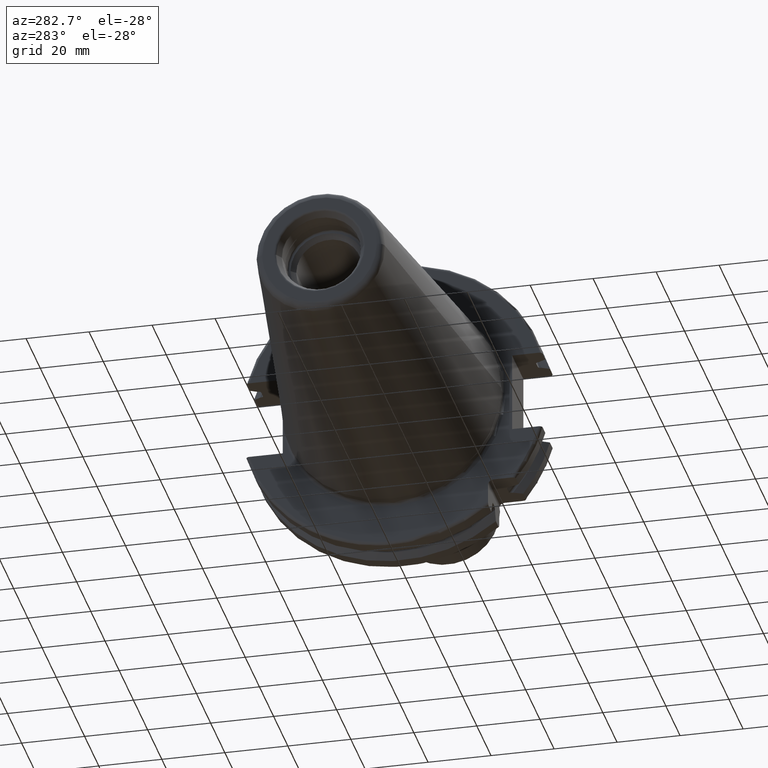
[diagram: clean part render]
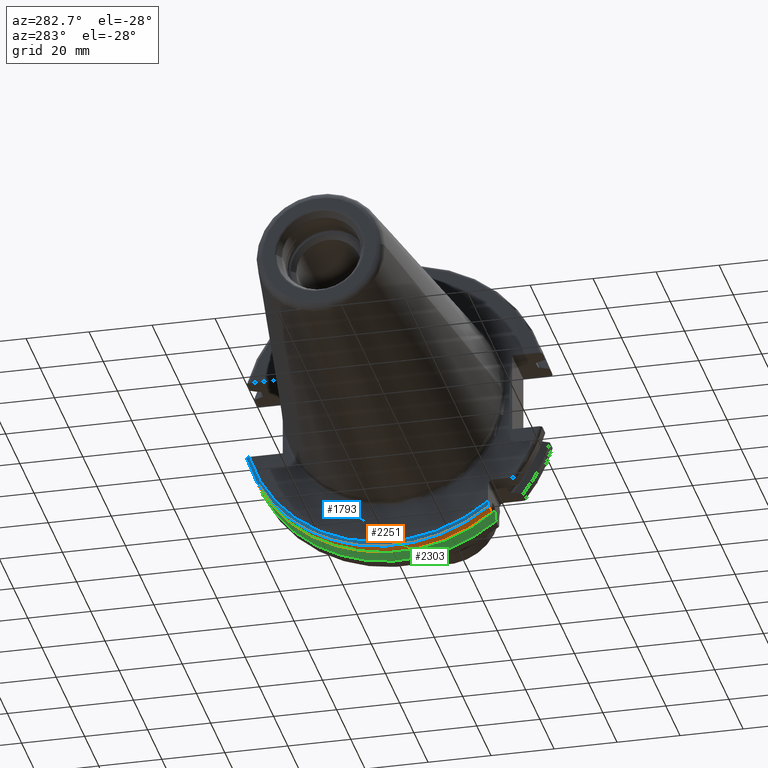
[diagram: same view with three faces highlighted in distinct colors, each labeled with its STEP entity id]
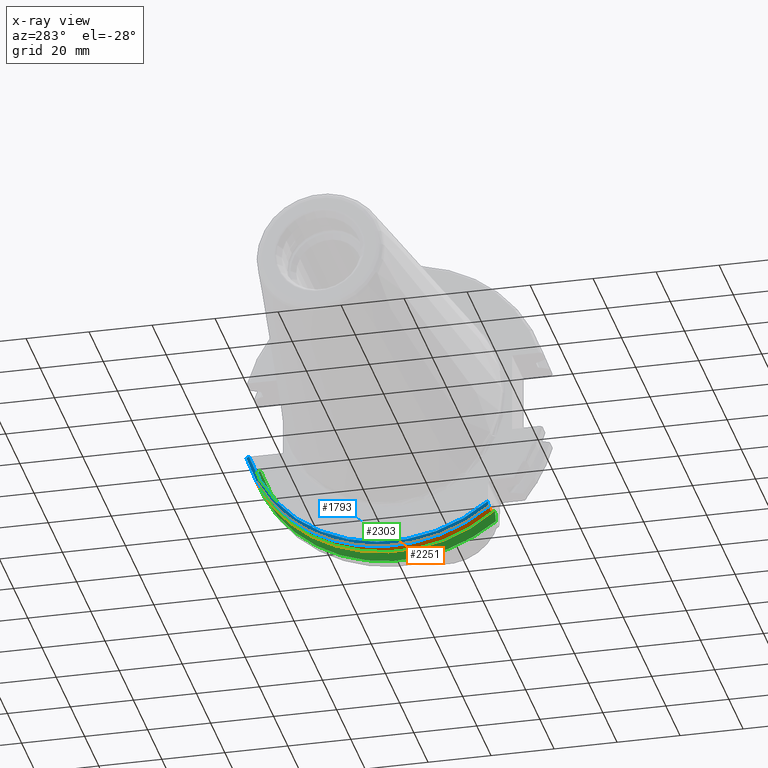
[diagram: x-ray of the same camera — body ghosted, the three highlighted faces saturated]
A machine part, auxiliary view with three faces highlighted in distinct colors.
The next image is the same camera in x-ray (body ghosted, the three faces saturated) — at least one of them is partly hidden behind the body in this view.
Their STEP definitions:

[orange] entity #2251 — the highlighted cylindrical surface (partial cylindrical patch) has radius 48.7375 mm, axis along (1, 0, 0).
#258=CARTESIAN_POINT('',(4.2E0,0.E0,0.E0));
#259=DIRECTION('',(-1.E0,0.E0,0.E0));
#260=DIRECTION('',(0.E0,9.643354064066E-1,-2.646832521159E-1));
#261=AXIS2_PLACEMENT_3D('',#258,#259,#260);
#700=CARTESIAN_POINT('',(7.934621614173E0,4.699929686974E1,-1.29E1));
#707=CARTESIAN_POINT('',(7.934621614173E0,-2.985E1,-3.852689198793E1));
#723=DIRECTION('',(1.E0,0.E0,0.E0));
#724=VECTOR('',#723,3.734621614173E0);
#725=CARTESIAN_POINT('',(4.2E0,4.699929686974E1,-1.29E1));
#726=LINE('',#725,#724);
#727=DIRECTION('',(1.E0,0.E0,0.E0));
#728=VECTOR('',#727,3.734621614173E0);
#729=CARTESIAN_POINT('',(4.2E0,-2.985E1,-3.852689198793E1));
#730=LINE('',#729,#728);
#731=CARTESIAN_POINT('',(7.934621614173E0,0.E0,0.E0));
#732=DIRECTION('',(1.E0,0.E0,0.E0));
#733=DIRECTION('',(0.E0,-6.124647345473E-1,-7.904979120376E-1));
#734=AXIS2_PLACEMENT_3D('',#731,#732,#733);
#1326=VERTEX_POINT('',#700);
#1372=CARTESIAN_POINT('',(4.2E0,4.699929686974E1,-1.29E1));
#1373=VERTEX_POINT('',#1372);
#1401=CARTESIAN_POINT('',(4.2E0,-2.985E1,-3.852689198793E1));
#1402=VERTEX_POINT('',#1401);
#1425=VERTEX_POINT('',#707);
#2240=CARTESIAN_POINT('',(-1.076325E2,0.E0,0.E0));
#2241=DIRECTION('',(1.E0,0.E0,0.E0));
#2242=DIRECTION('',(0.E0,-1.E0,0.E0));
#2243=AXIS2_PLACEMENT_3D('',#2240,#2241,#2242);
#2244=CYLINDRICAL_SURFACE('',#2243,4.87375E1);
#2245=ORIENTED_EDGE('',*,*,#1833,.F.);
#2246=ORIENTED_EDGE('',*,*,#1789,.T.);
#2247=ORIENTED_EDGE('',*,*,#1691,.T.);
#2248=ORIENTED_EDGE('',*,*,#2220,.T.);
#2249=EDGE_LOOP('',(#2245,#2246,#2247,#2248));
#2250=FACE_OUTER_BOUND('',#2249,.F.);
#2251=ADVANCED_FACE('',(#2250),#2244,.T.);
#262=CIRCLE('',#261,4.87375E1);
#735=CIRCLE('',#734,4.87375E1);
#1691=EDGE_CURVE('',#1402,#1425,#730,.T.);
#1789=EDGE_CURVE('',#1373,#1402,#262,.T.);
#1833=EDGE_CURVE('',#1373,#1326,#726,.T.);
#2220=EDGE_CURVE('',#1425,#1326,#735,.T.);

[blue] entity #1793 — the highlighted toroidal blend (fillet) surface has major radius 47.7375 mm and minor (blend) radius 1 mm.
#190=CARTESIAN_POINT('',(3.2E0,0.E0,0.E0));
#191=DIRECTION('',(-1.E0,0.E0,0.E0));
#192=DIRECTION('',(0.E0,9.627964123359E-1,-2.702278083268E-1));
#193=AXIS2_PLACEMENT_3D('',#190,#191,#192);
#237=CARTESIAN_POINT('',(3.2E0,4.596149373389E1,-1.29E1));
#238=CARTESIAN_POINT('',(3.2E0,4.604026443227E1,-1.29E1));
#239=CARTESIAN_POINT('',(3.216813255287E0,4.619328239852E1,-1.29E1));
#240=CARTESIAN_POINT('',(3.290538328370E0,4.641376542139E1,-1.29E1));
#241=CARTESIAN_POINT('',(3.409705660893E0,4.661163928454E1,-1.29E1));
#242=CARTESIAN_POINT('',(3.568375595419E0,4.677744698912E1,-1.29E1));
#243=CARTESIAN_POINT('',(3.759602935675E0,4.690321007119E1,-1.29E1));
#244=CARTESIAN_POINT('',(3.974378910530E0,4.698149887214E1,-1.29E1));
#245=CARTESIAN_POINT('',(4.123284460641E0,4.699929686974E1,-1.29E1));
#246=CARTESIAN_POINT('',(4.2E0,4.699929686974E1,-1.29E1));
#248=CARTESIAN_POINT('',(4.2E0,-2.985E1,-3.852689198793E1));
#249=CARTESIAN_POINT('',(4.121351701574E0,-2.985E1,-3.852689198793E1));
#250=CARTESIAN_POINT('',(3.966904735014E0,-2.985E1,-3.850408165447E1));
#251=CARTESIAN_POINT('',(3.738653969764E0,-2.985E1,-3.839864952437E1));
#252=CARTESIAN_POINT('',(3.529185168070E0,-2.985E1,-3.821837887996E1));
#253=CARTESIAN_POINT('',(3.352580918325E0,-2.985E1,-3.796237987635E1));
#254=CARTESIAN_POINT('',(3.229812788304E0,-2.985E1,-3.762998844337E1));
#255=CARTESIAN_POINT('',(3.2E0,-2.985E1,-3.738468079689E1));
#256=CARTESIAN_POINT('',(3.2E0,-2.985E1,-3.725381062724E1));
#258=CARTESIAN_POINT('',(4.2E0,0.E0,0.E0));
#259=DIRECTION('',(-1.E0,0.E0,0.E0));
#260=DIRECTION('',(0.E0,9.643354064066E-1,-2.646832521159E-1));
#261=AXIS2_PLACEMENT_3D('',#258,#259,#260);
#1362=CARTESIAN_POINT('',(3.2E0,4.596149373389E1,-1.29E1));
#1363=VERTEX_POINT('',#1362);
#1372=CARTESIAN_POINT('',(4.2E0,4.699929686974E1,-1.29E1));
#1373=VERTEX_POINT('',#1372);
#1401=CARTESIAN_POINT('',(4.2E0,-2.985E1,-3.852689198793E1));
#1402=VERTEX_POINT('',#1401);
#1403=CARTESIAN_POINT('',(3.2E0,-2.985E1,-3.725381062724E1));
#1404=VERTEX_POINT('',#1403);
#1780=CARTESIAN_POINT('',(4.2E0,0.E0,0.E0));
#1781=DIRECTION('',(1.E0,0.E0,0.E0));
#1782=DIRECTION('',(0.E0,-1.E0,0.E0));
#1783=AXIS2_PLACEMENT_3D('',#1780,#1781,#1782);
#1784=TOROIDAL_SURFACE('',#1783,4.77375E1,1.E0);
#1786=ORIENTED_EDGE('',*,*,#1785,.F.);
#1787=ORIENTED_EDGE('',*,*,#1723,.T.);
#1788=ORIENTED_EDGE('',*,*,#1693,.F.);
#1790=ORIENTED_EDGE('',*,*,#1789,.F.);
#1791=EDGE_LOOP('',(#1786,#1787,#1788,#1790));
#1792=FACE_OUTER_BOUND('',#1791,.F.);
#1793=ADVANCED_FACE('',(#1792),#1784,.T.);
#194=CIRCLE('',#193,4.77375E1);
#247=B_SPLINE_CURVE_WITH_KNOTS('',3,(#237,#238,#239,#240,#241,#242,#243,#244,
#245,#246),.UNSPECIFIED.,.F.,.F.,(4,1,1,1,1,1,1,4),(0.E0,1.428571428571E-1,
2.857142857143E-1,4.285714285714E-1,5.714285714286E-1,7.142857142857E-1,
8.571428571429E-1,1.E0),.UNSPECIFIED.);
#257=B_SPLINE_CURVE_WITH_KNOTS('',3,(#248,#249,#250,#251,#252,#253,#254,#255,
#256),.UNSPECIFIED.,.F.,.F.,(4,1,1,1,1,1,4),(0.E0,1.666666666667E-1,
3.333333333333E-1,5.E-1,6.666666666667E-1,8.333333333333E-1,1.E0),
.UNSPECIFIED.);
#262=CIRCLE('',#261,4.87375E1);
#1693=EDGE_CURVE('',#1402,#1404,#257,.T.);
#1723=EDGE_CURVE('',#1363,#1404,#194,.T.);
#1785=EDGE_CURVE('',#1363,#1373,#247,.T.);
#1789=EDGE_CURVE('',#1373,#1402,#262,.T.);

[green] entity #2303 — the highlighted conical surface has half-angle 60 deg.
#740=CARTESIAN_POINT('',(1.441537838583E1,0.E0,0.E0));
#741=DIRECTION('',(1.E0,0.E0,0.E0));
#742=DIRECTION('',(0.E0,-6.124647345473E-1,-7.904979120376E-1));
#743=AXIS2_PLACEMENT_3D('',#740,#741,#742);
#785=CARTESIAN_POINT('',(1.30875E1,4.460981716077E1,-1.29E1));
#786=CARTESIAN_POINT('',(1.323171622645E1,4.486984125009E1,-1.29E1));
#787=CARTESIAN_POINT('',(1.352236645045E1,4.539353719098E1,-1.29E1));
#788=CARTESIAN_POINT('',(1.396495664446E1,4.618996220278E1,-1.29E1));
#789=CARTESIAN_POINT('',(1.426449561388E1,4.672829507383E1,-1.29E1));
#790=CARTESIAN_POINT('',(1.441537838583E1,4.699929686974E1,-1.29E1));
#792=CARTESIAN_POINT('',(1.30875E1,0.E0,0.E0));
#793=DIRECTION('',(-1.E0,0.E0,0.E0));
#794=DIRECTION('',(0.E0,9.606411165078E-1,-2.777924499957E-1));
#795=AXIS2_PLACEMENT_3D('',#792,#793,#794);
#797=CARTESIAN_POINT('',(1.30875E1,-2.985E1,-3.557278857662E1));
#798=CARTESIAN_POINT('',(1.322720354061E1,-2.985E1,-3.588866659244E1));
#799=CARTESIAN_POINT('',(1.351179500938E1,-2.985E1,-3.652866450573E1));
#800=CARTESIAN_POINT('',(1.395393296765E1,-2.985E1,-3.751242476101E1));
#801=CARTESIAN_POINT('',(1.425975326859E1,-2.985E1,-3.818590359837E1));
#802=CARTESIAN_POINT('',(1.441537838583E1,-2.985E1,-3.852689198793E1));
#1304=CARTESIAN_POINT('',(1.30875E1,4.460981716077E1,-1.29E1));
#1306=VERTEX_POINT('',#1304);
#1324=VERTEX_POINT('',#790);
#1391=CARTESIAN_POINT('',(1.30875E1,-2.985E1,-3.557278857662E1));
#1392=VERTEX_POINT('',#1391);
#1424=VERTEX_POINT('',#802);
#2292=CARTESIAN_POINT('',(1.375143919291E1,0.E0,0.E0));
#2293=DIRECTION('',(1.E0,0.E0,0.E0));
#2294=DIRECTION('',(0.E0,-1.E0,0.E0));
#2295=AXIS2_PLACEMENT_3D('',#2292,#2293,#2294);
#2296=CONICAL_SURFACE('',#2295,4.758752358474E1,6.E1);
#2297=ORIENTED_EDGE('',*,*,#1823,.F.);
#2298=ORIENTED_EDGE('',*,*,#2024,.T.);
#2299=ORIENTED_EDGE('',*,*,#1677,.T.);
#2300=ORIENTED_EDGE('',*,*,#2258,.T.);
#2301=EDGE_LOOP('',(#2297,#2298,#2299,#2300));
#2302=FACE_OUTER_BOUND('',#2301,.F.);
#2303=ADVANCED_FACE('',(#2302),#2296,.T.);
#744=CIRCLE('',#743,4.87375E1);
#791=B_SPLINE_CURVE_WITH_KNOTS('',3,(#785,#786,#787,#788,#789,#790),
.UNSPECIFIED.,.F.,.F.,(4,1,1,4),(0.E0,3.333333333333E-1,6.666666666667E-1,1.E0),
.UNSPECIFIED.);
#796=CIRCLE('',#795,4.643754716948E1);
#803=B_SPLINE_CURVE_WITH_KNOTS('',3,(#797,#798,#799,#800,#801,#802),
.UNSPECIFIED.,.F.,.F.,(4,1,1,4),(0.E0,3.333333333333E-1,6.666666666667E-1,1.E0),
.UNSPECIFIED.);
#1677=EDGE_CURVE('',#1392,#1424,#803,.T.);
#1823=EDGE_CURVE('',#1306,#1324,#791,.T.);
#2024=EDGE_CURVE('',#1306,#1392,#796,.T.);
#2258=EDGE_CURVE('',#1424,#1324,#744,.T.);